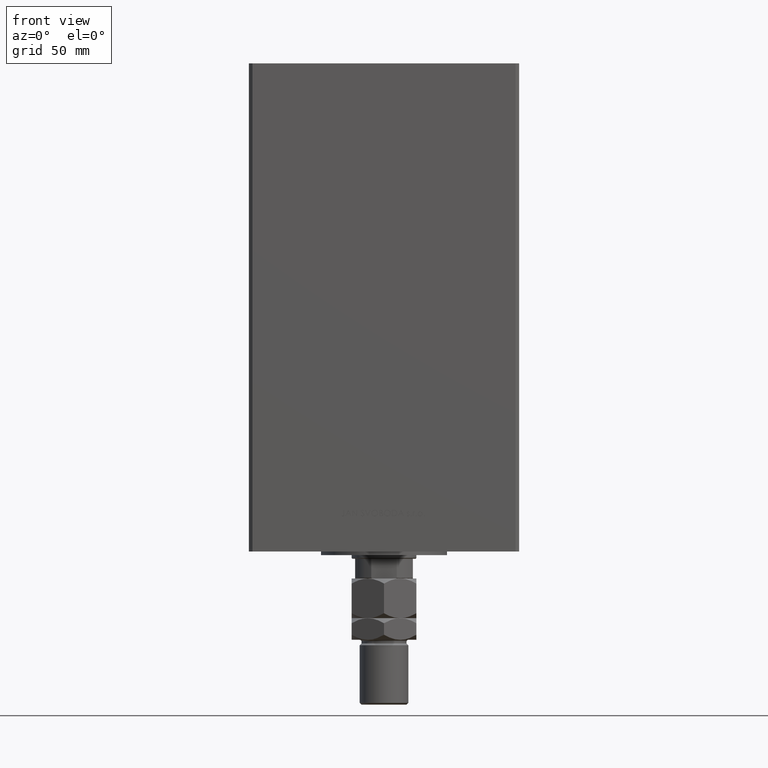
[diagram: clean part render]
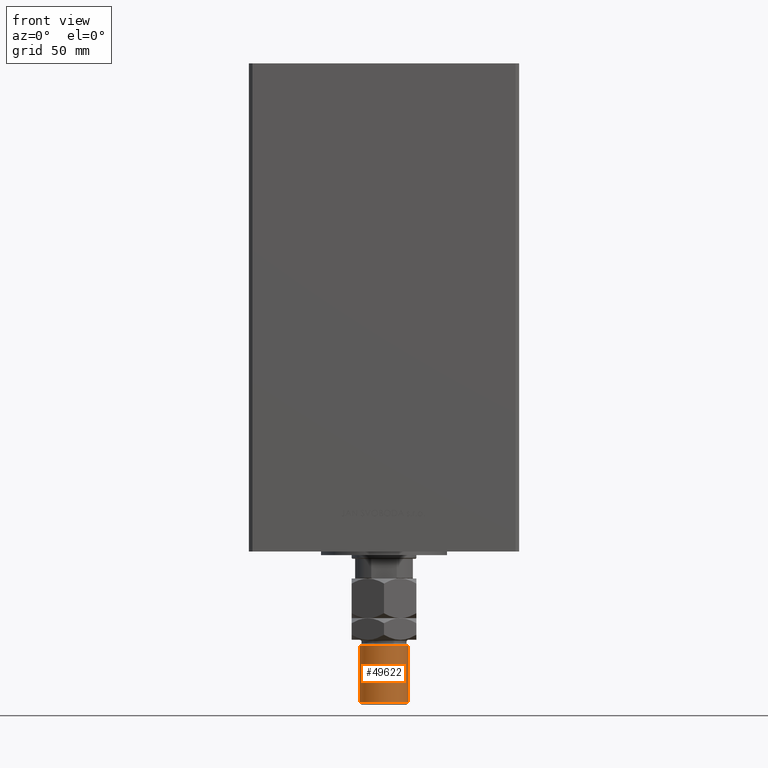
[diagram: same view with one face highlighted and labeled with its STEP entity id]
A machine part, front view. The second image highlights one B-rep face of the part: STEP entity #49622.
In plain terms, the highlighted cylindrical surface (edge-blend (fillet) strip) has radius 13.5 mm, axis along (0, -0, 1).
Its self-contained STEP definition (entity closure, byte-faithful):
#3980 = LINE ( 'NONE', #31330, #12064 ) ;
#5384 = ORIENTED_EDGE ( 'NONE', *, *, #49398, .T. ) ;
#6324 = DIRECTION ( 'NONE',  ( 1.000000000000000000, 0.000000000000000000, 0.000000000000000000 ) ) ;
#8086 = CARTESIAN_POINT ( 'NONE',  ( 0.000000000000000000, 0.000000000000000000, 70.00000000000000000 ) ) ;
#8594 = FACE_OUTER_BOUND ( 'NONE', #16616, .T. ) ;
#9616 = CARTESIAN_POINT ( 'NONE',  ( -13.50000000000000000, 0.000000000000000000, 68.99999999999998579 ) ) ;
#12064 = VECTOR ( 'NONE', #27758, 1000.000000000000000 ) ;
#12184 = AXIS2_PLACEMENT_3D ( 'NONE', #25512, #48039, #6324 ) ;
#13369 = ORIENTED_EDGE ( 'NONE', *, *, #29871, .F. ) ;
#13444 = CARTESIAN_POINT ( 'NONE',  ( 0.000000000000000000, 0.000000000000000000, 37.00000000000000000 ) ) ;
#14720 = LINE ( 'NONE', #23667, #30553 ) ;
#14808 = ORIENTED_EDGE ( 'NONE', *, *, #20400, .T. ) ;
#16136 = CARTESIAN_POINT ( 'NONE',  ( 13.50000000000000000, 1.653273178848926867E-15, 37.00000000000000000 ) ) ;
#16616 = EDGE_LOOP ( 'NONE', ( #13369, #5384, #46599, #14808 ) ) ;
#20110 = DIRECTION ( 'NONE',  ( -0.000000000000000000, -0.000000000000000000, -1.000000000000000000 ) ) ;
#20234 = EDGE_CURVE ( 'NONE', #24894, #39964, #3980, .T. ) ;
#20400 = EDGE_CURVE ( 'NONE', #39964, #31174, #28403, .T. ) ;
#20610 = DIRECTION ( 'NONE',  ( -0.000000000000000000, -0.000000000000000000, 1.000000000000000000 ) ) ;
#22882 = CARTESIAN_POINT ( 'NONE',  ( 13.50000000000000000, 1.653273178848926867E-15, 68.99999999999998579 ) ) ;
#23667 = CARTESIAN_POINT ( 'NONE',  ( 13.50000000000000000, 1.653273178848926867E-15, 70.00000000000000000 ) ) ;
#24894 = VERTEX_POINT ( 'NONE', #9616 ) ;
#25512 = CARTESIAN_POINT ( 'NONE',  ( 0.000000000000000000, 0.000000000000000000, 68.99999999999998579 ) ) ;
#27758 = DIRECTION ( 'NONE',  ( -0.000000000000000000, -0.000000000000000000, -1.000000000000000000 ) ) ;
#28403 = CIRCLE ( 'NONE', #40667, 13.50000000000000000 ) ;
#29871 = EDGE_CURVE ( 'NONE', #35099, #31174, #14720, .T. ) ;
#30116 = CIRCLE ( 'NONE', #12184, 13.50000000000000000 ) ;
#30553 = VECTOR ( 'NONE', #39269, 1000.000000000000000 ) ;
#31174 = VERTEX_POINT ( 'NONE', #16136 ) ;
#31330 = CARTESIAN_POINT ( 'NONE',  ( -13.50000000000000000, 0.000000000000000000, 70.00000000000000000 ) ) ;
#35099 = VERTEX_POINT ( 'NONE', #22882 ) ;
#36953 = DIRECTION ( 'NONE',  ( 1.000000000000000000, 0.000000000000000000, 0.000000000000000000 ) ) ;
#39269 = DIRECTION ( 'NONE',  ( -0.000000000000000000, -0.000000000000000000, -1.000000000000000000 ) ) ;
#39964 = VERTEX_POINT ( 'NONE', #47941 ) ;
#40667 = AXIS2_PLACEMENT_3D ( 'NONE', #13444, #20610, #36953 ) ;
#43138 = CYLINDRICAL_SURFACE ( 'NONE', #44092, 13.50000000000000000 ) ;
#44092 = AXIS2_PLACEMENT_3D ( 'NONE', #8086, #20110, #47730 ) ;
#46599 = ORIENTED_EDGE ( 'NONE', *, *, #20234, .T. ) ;
#47730 = DIRECTION ( 'NONE',  ( -1.000000000000000000, 0.000000000000000000, 0.000000000000000000 ) ) ;
#47941 = CARTESIAN_POINT ( 'NONE',  ( -13.50000000000000000, 0.000000000000000000, 37.00000000000000000 ) ) ;
#48039 = DIRECTION ( 'NONE',  ( 0.000000000000000000, 0.000000000000000000, -1.000000000000000000 ) ) ;
#49398 = EDGE_CURVE ( 'NONE', #35099, #24894, #30116, .T. ) ;
#49622 = ADVANCED_FACE ( 'NONE', ( #8594 ), #43138, .T. ) ;